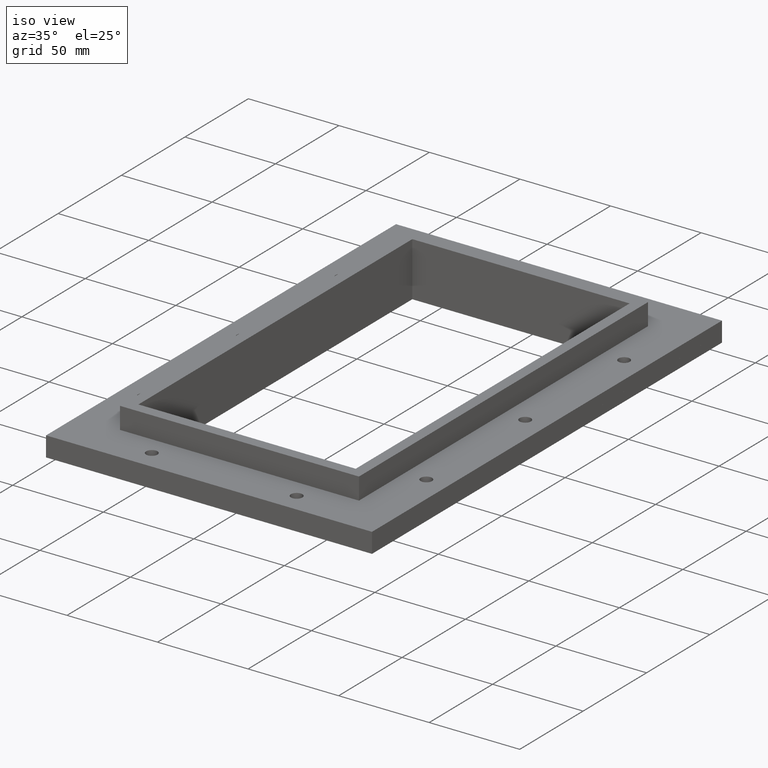
[diagram: clean part render]
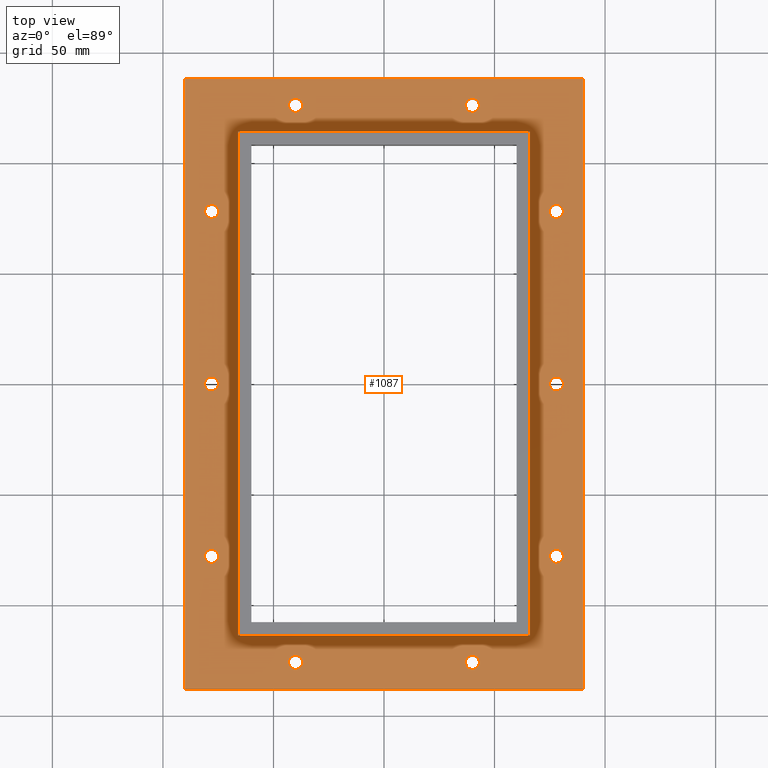
[diagram: tour spotlight — one face highlighted and labeled with its STEP entity id]
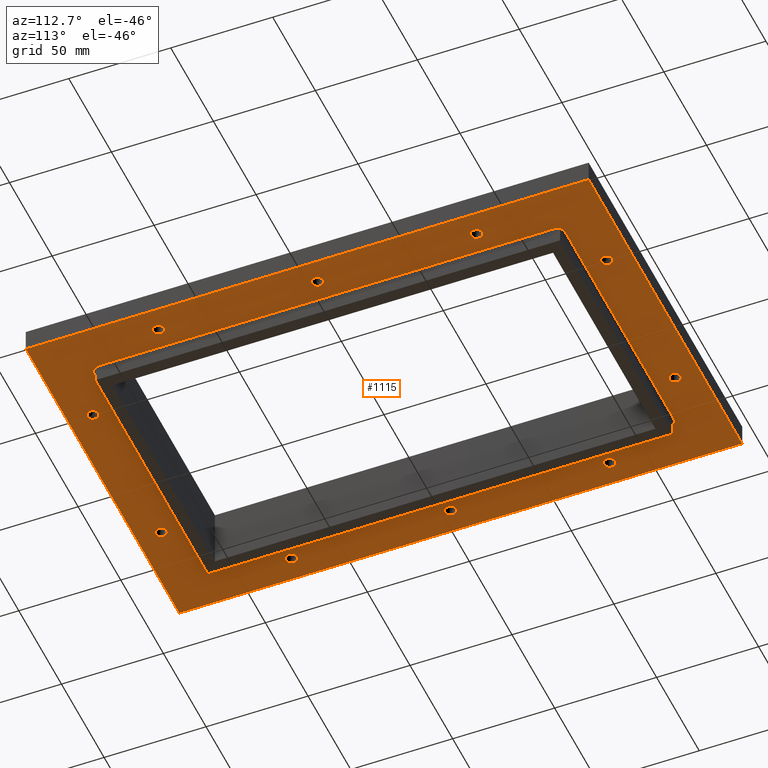
[diagram: tour spotlight — one face highlighted and labeled with its STEP entity id]
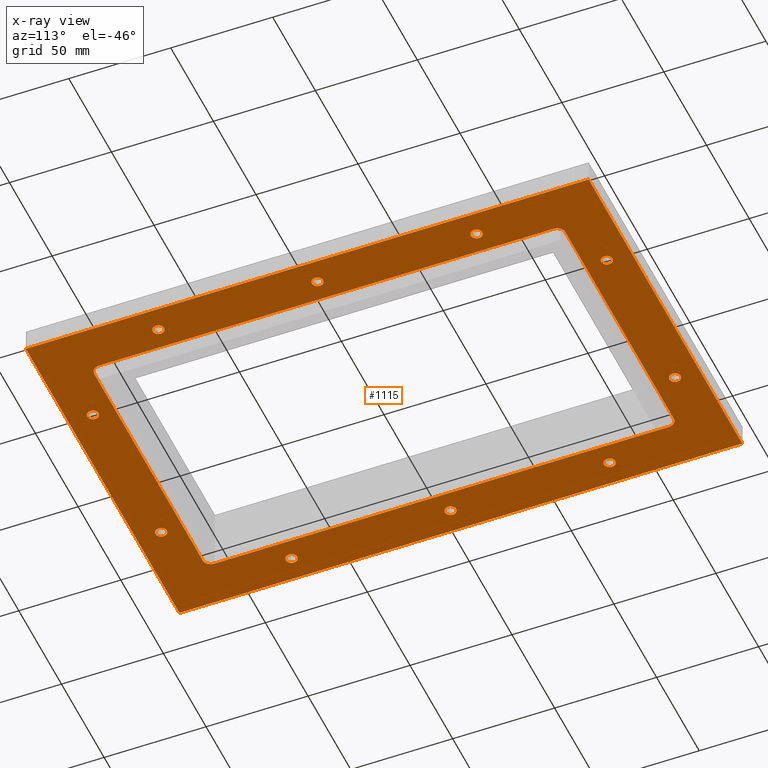
[diagram: x-ray of the same camera — body ghosted, this tour face saturated]
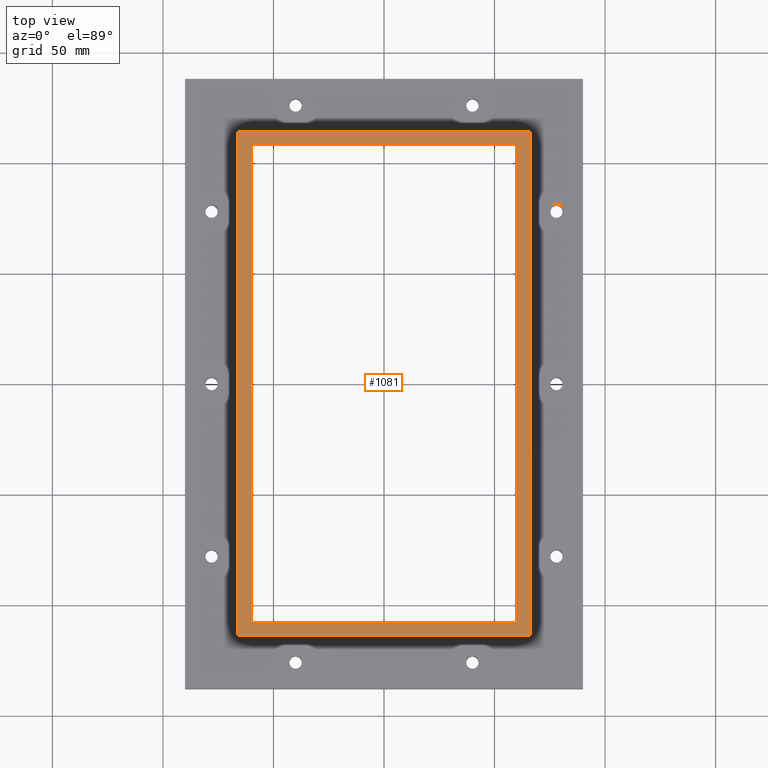
[diagram: tour spotlight — one face highlighted and labeled with its STEP entity id]
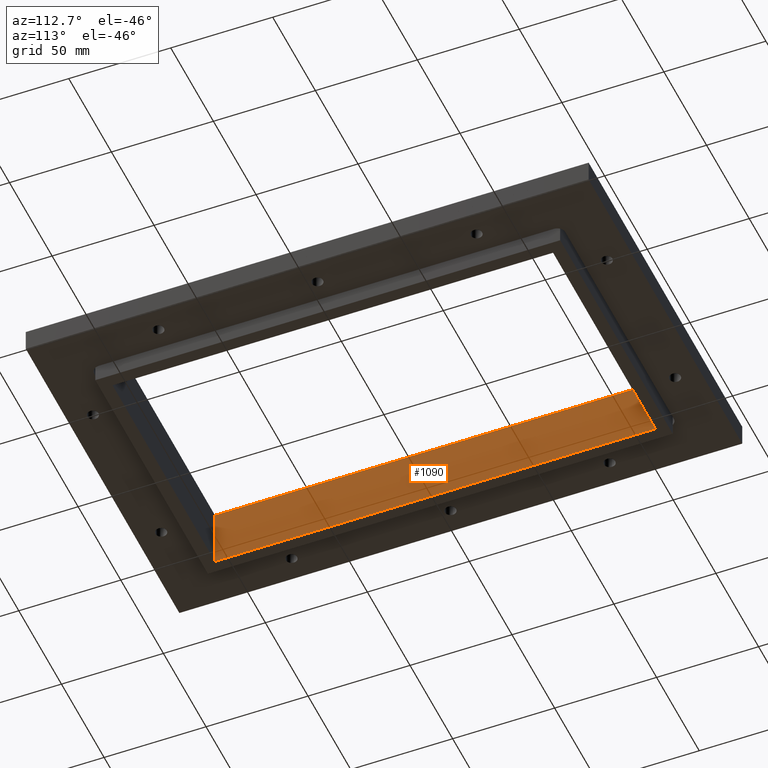
[diagram: tour spotlight — one face highlighted and labeled with its STEP entity id]
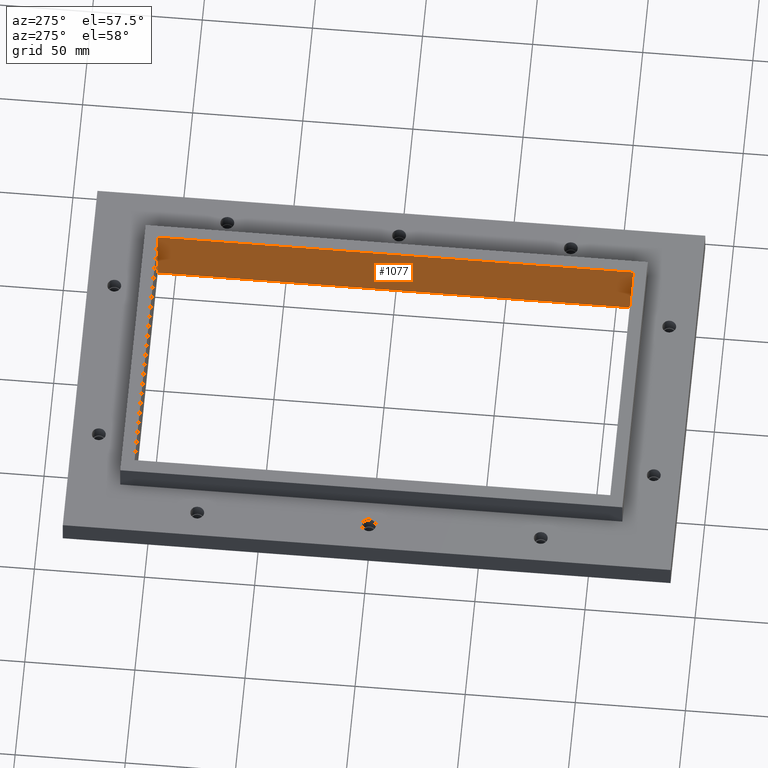
[diagram: tour spotlight — one face highlighted and labeled with its STEP entity id]
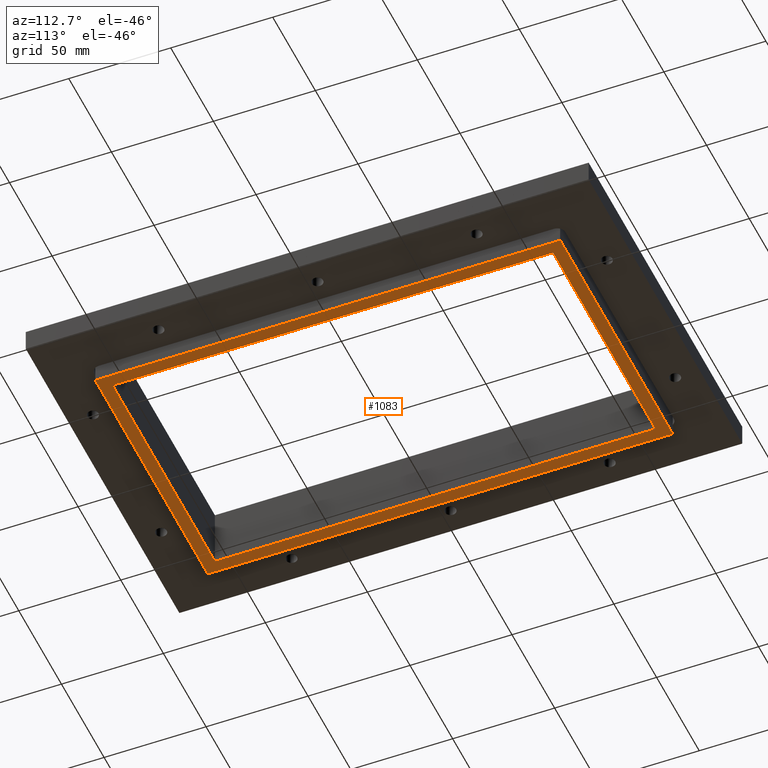
[diagram: tour spotlight — one face highlighted and labeled with its STEP entity id]
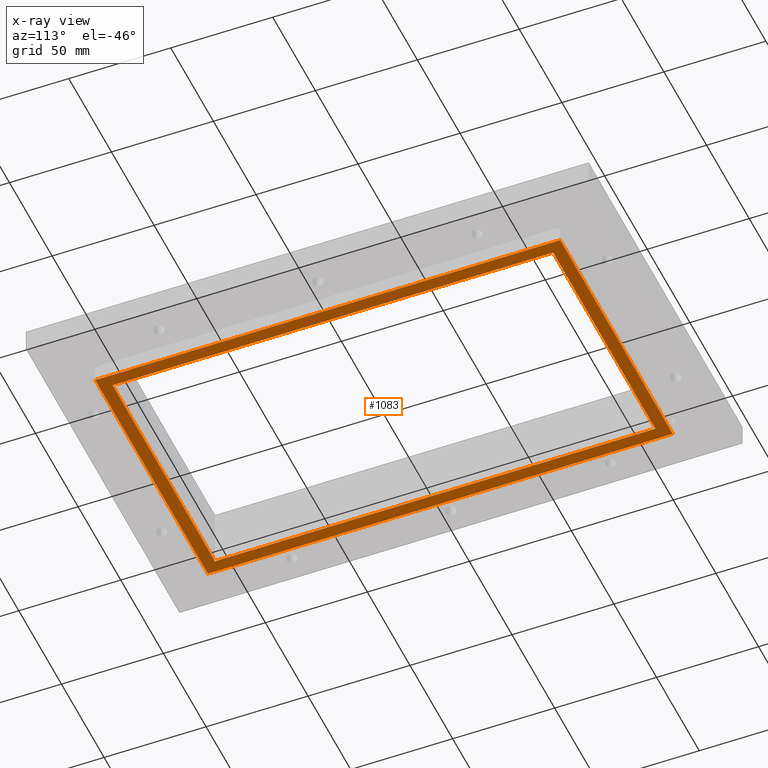
[diagram: x-ray of the same camera — body ghosted, this tour face saturated]
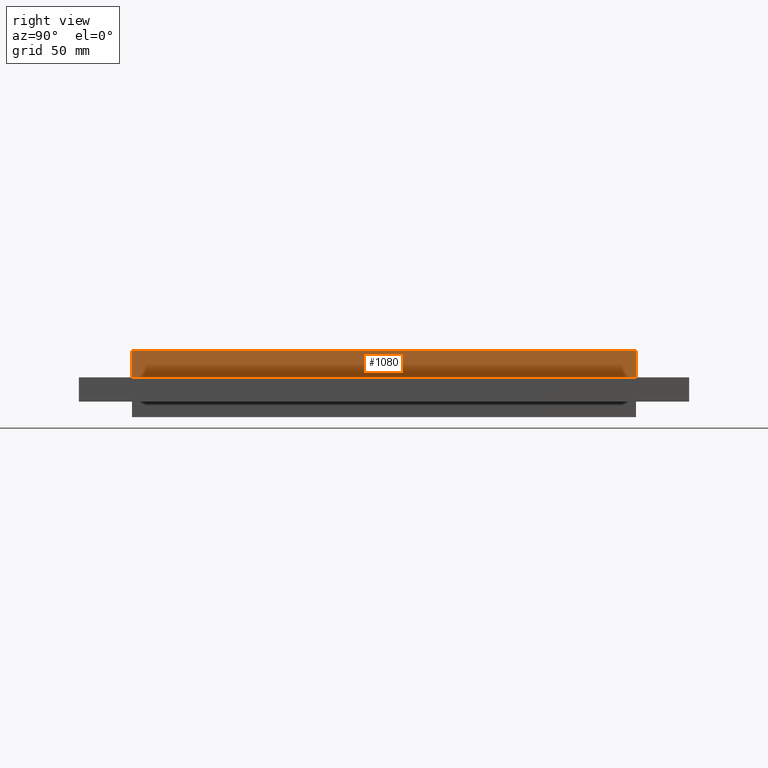
[diagram: tour spotlight — one face highlighted and labeled with its STEP entity id]
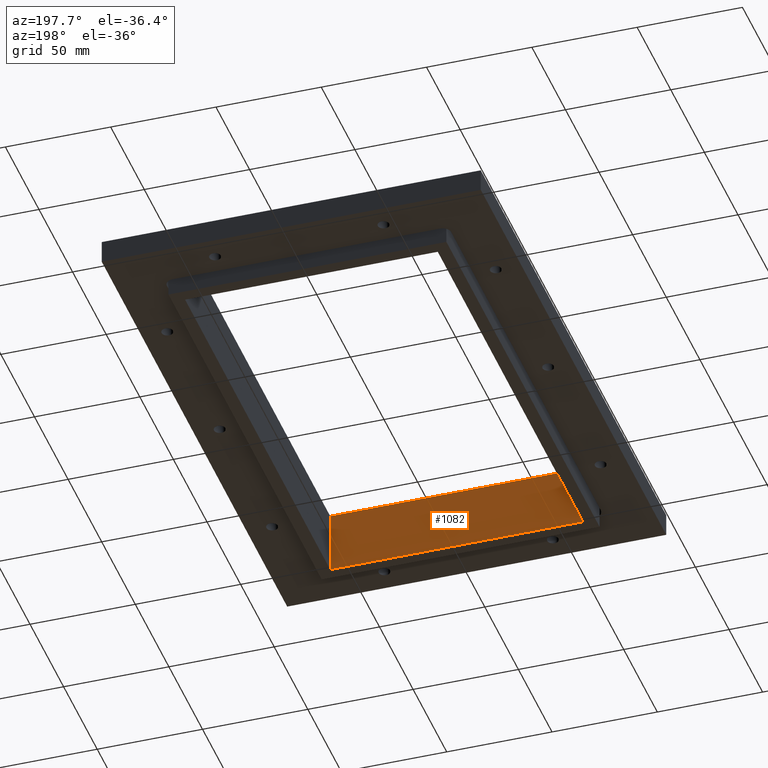
[diagram: tour spotlight — one face highlighted and labeled with its STEP entity id]
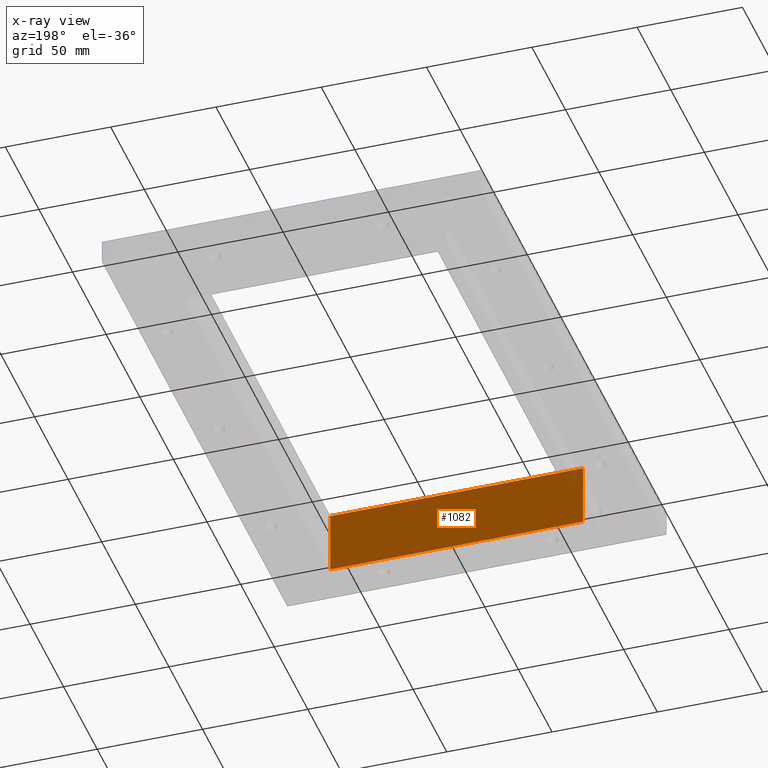
[diagram: x-ray of the same camera — body ghosted, this tour face saturated]
A machine part: a face-by-face anatomy tour. The part has 54 B-rep faces; the first image is the clean iso view, then the 8 largest visible faces are spotlighted one at a time (largest first), each with its STEP entity span.

Face 1 — top view, entity #1087. In plain terms, the highlighted planar face has unit normal (0, 0, 1).
Definition (entity closure, byte-faithful):
#54=FACE_BOUND('',#209,.T.);
#55=FACE_BOUND('',#210,.T.);
#56=FACE_BOUND('',#211,.T.);
#57=FACE_BOUND('',#212,.T.);
#58=FACE_BOUND('',#213,.T.);
#59=FACE_BOUND('',#214,.T.);
#60=FACE_BOUND('',#215,.T.);
#61=FACE_BOUND('',#216,.T.);
#62=FACE_BOUND('',#217,.T.);
#63=FACE_BOUND('',#218,.T.);
#64=FACE_BOUND('',#219,.T.);
#101=PLANE('',#1182);
#141=FACE_OUTER_BOUND('',#208,.T.);
#208=EDGE_LOOP('',(#869,#870,#871,#872));
#209=EDGE_LOOP('',(#873));
#210=EDGE_LOOP('',(#874));
#211=EDGE_LOOP('',(#875));
#212=EDGE_LOOP('',(#876));
#213=EDGE_LOOP('',(#877));
#214=EDGE_LOOP('',(#878));
#215=EDGE_LOOP('',(#879));
#216=EDGE_LOOP('',(#880));
#217=EDGE_LOOP('',(#881));
#218=EDGE_LOOP('',(#882));
#219=EDGE_LOOP('',(#883,#884,#885,#886));
#292=LINE('',#1629,#388);
#294=LINE('',#1635,#390);
#305=LINE('',#1656,#401);
#307=LINE('',#1661,#403);
#324=LINE('',#1691,#420);
#325=LINE('',#1693,#421);
#326=LINE('',#1695,#422);
#327=LINE('',#1696,#423);
#388=VECTOR('',#1329,10.);
#390=VECTOR('',#1333,10.);
#401=VECTOR('',#1350,10.);
#403=VECTOR('',#1354,10.);
#420=VECTOR('',#1383,10.);
#421=VECTOR('',#1386,10.);
#422=VECTOR('',#1387,10.);
#423=VECTOR('',#1388,10.);
#463=CIRCLE('',#1139,3.15);
#465=CIRCLE('',#1142,3.15);
#467=CIRCLE('',#1145,3.15);
#469=CIRCLE('',#1148,3.15);
#471=CIRCLE('',#1151,3.15);
#473=CIRCLE('',#1154,3.15);
#475=CIRCLE('',#1157,3.15);
#477=CIRCLE('',#1160,3.15);
#479=CIRCLE('',#1163,3.15);
#481=CIRCLE('',#1166,3.15);
#511=VERTEX_POINT('',#1544);
#513=VERTEX_POINT('',#1550);
#515=VERTEX_POINT('',#1556);
#517=VERTEX_POINT('',#1562);
#519=VERTEX_POINT('',#1568);
#521=VERTEX_POINT('',#1574);
#523=VERTEX_POINT('',#1580);
#525=VERTEX_POINT('',#1586);
#527=VERTEX_POINT('',#1592);
#529=VERTEX_POINT('',#1598);
#539=VERTEX_POINT('',#1622);
#542=VERTEX_POINT('',#1627);
#544=VERTEX_POINT('',#1632);
#545=VERTEX_POINT('',#1634);
#551=VERTEX_POINT('',#1652);
#554=VERTEX_POINT('',#1659);
#561=VERTEX_POINT('',#1689);
#562=VERTEX_POINT('',#1694);
#607=EDGE_CURVE('',#511,#511,#463,.T.);
#610=EDGE_CURVE('',#513,#513,#465,.T.);
#613=EDGE_CURVE('',#515,#515,#467,.T.);
#616=EDGE_CURVE('',#517,#517,#469,.T.);
#619=EDGE_CURVE('',#519,#519,#471,.T.);
#622=EDGE_CURVE('',#521,#521,#473,.T.);
#625=EDGE_CURVE('',#523,#523,#475,.T.);
#628=EDGE_CURVE('',#525,#525,#477,.T.);
#631=EDGE_CURVE('',#527,#527,#479,.T.);
#634=EDGE_CURVE('',#529,#529,#481,.T.);
#648=EDGE_CURVE('',#539,#542,#292,.T.);
#650=EDGE_CURVE('',#544,#545,#294,.T.);
#661=EDGE_CURVE('',#551,#539,#305,.T.);
#663=EDGE_CURVE('',#554,#544,#307,.T.);
#680=EDGE_CURVE('',#561,#551,#324,.T.);
#681=EDGE_CURVE('',#561,#542,#325,.T.);
#682=EDGE_CURVE('',#545,#562,#326,.T.);
#683=EDGE_CURVE('',#562,#554,#327,.T.);
#869=ORIENTED_EDGE('',*,*,#680,.T.);
#870=ORIENTED_EDGE('',*,*,#661,.T.);
#871=ORIENTED_EDGE('',*,*,#648,.T.);
#872=ORIENTED_EDGE('',*,*,#681,.F.);
#873=ORIENTED_EDGE('',*,*,#607,.T.);
#874=ORIENTED_EDGE('',*,*,#610,.T.);
#875=ORIENTED_EDGE('',*,*,#613,.T.);
#876=ORIENTED_EDGE('',*,*,#616,.T.);
#877=ORIENTED_EDGE('',*,*,#619,.T.);
#878=ORIENTED_EDGE('',*,*,#622,.T.);
#879=ORIENTED_EDGE('',*,*,#625,.T.);
#880=ORIENTED_EDGE('',*,*,#628,.T.);
#881=ORIENTED_EDGE('',*,*,#631,.T.);
#882=ORIENTED_EDGE('',*,*,#634,.T.);
#883=ORIENTED_EDGE('',*,*,#682,.F.);
#884=ORIENTED_EDGE('',*,*,#650,.F.);
#885=ORIENTED_EDGE('',*,*,#663,.F.);
#886=ORIENTED_EDGE('',*,*,#683,.F.);
#1087=ADVANCED_FACE('',(#141,#54,#55,#56,#57,#58,#59,#60,#61,#62,#63,#64),
#101,.T.);
#1139=AXIS2_PLACEMENT_3D('',#1545,#1244,#1245);
#1142=AXIS2_PLACEMENT_3D('',#1551,#1251,#1252);
#1145=AXIS2_PLACEMENT_3D('',#1557,#1258,#1259);
#1148=AXIS2_PLACEMENT_3D('',#1563,#1265,#1266);
#1151=AXIS2_PLACEMENT_3D('',#1569,#1272,#1273);
#1154=AXIS2_PLACEMENT_3D('',#1575,#1279,#1280);
#1157=AXIS2_PLACEMENT_3D('',#1581,#1286,#1287);
#1160=AXIS2_PLACEMENT_3D('',#1587,#1293,#1294);
#1163=AXIS2_PLACEMENT_3D('',#1593,#1300,#1301);
#1166=AXIS2_PLACEMENT_3D('',#1599,#1307,#1308);
#1182=AXIS2_PLACEMENT_3D('',#1692,#1384,#1385);
#1244=DIRECTION('center_axis',(0.,-1.38777878078144E-16,-1.));
#1245=DIRECTION('ref_axis',(-1.,0.,0.));
#1251=DIRECTION('center_axis',(0.,-1.38777878078144E-16,-1.));
#1252=DIRECTION('ref_axis',(-1.,0.,0.));
#1258=DIRECTION('center_axis',(0.,-1.38777878078144E-16,-1.));
#1259=DIRECTION('ref_axis',(-1.,0.,0.));
#1265=DIRECTION('center_axis',(0.,-1.38777878078144E-16,-1.));
#1266=DIRECTION('ref_axis',(1.,0.,0.));
#1272=DIRECTION('center_axis',(0.,-1.38777878078144E-16,-1.));
#1273=DIRECTION('ref_axis',(1.,0.,0.));
#1279=DIRECTION('center_axis',(0.,-1.38777878078144E-16,-1.));
#1280=DIRECTION('ref_axis',(1.,0.,0.));
#1286=DIRECTION('center_axis',(0.,-1.38777878078144E-16,-1.));
#1287=DIRECTION('ref_axis',(1.,0.,0.));
#1293=DIRECTION('center_axis',(0.,-1.38777878078144E-16,-1.));
#1294=DIRECTION('ref_axis',(1.,0.,0.));
#1300=DIRECTION('center_axis',(0.,-1.38777878078144E-16,-1.));
#1301=DIRECTION('ref_axis',(1.,0.,0.));
#1307=DIRECTION('center_axis',(0.,-1.38777878078144E-16,-1.));
#1308=DIRECTION('ref_axis',(1.,0.,0.));
#1329=DIRECTION('',(-1.,-1.54032548624732E-16,0.));
#1333=DIRECTION('',(-1.,-1.54032548624732E-16,0.));
#1350=DIRECTION('',(0.,1.,0.));
#1354=DIRECTION('',(0.,1.,0.));
#1383=DIRECTION('',(1.,0.,0.));
#1384=DIRECTION('center_axis',(0.,1.38777878078144E-16,1.));
#1385=DIRECTION('ref_axis',(-0.707106781186548,-0.707106781186547,9.81307786677358E-17));
#1386=DIRECTION('',(1.64477485129653E-16,1.,0.));
#1387=DIRECTION('',(-1.66191952395288E-16,-1.,0.));
#1388=DIRECTION('',(1.,0.,0.));
#1544=CARTESIAN_POINT('',(81.15,78.,2.99999999999997));
#1545=CARTESIAN_POINT('Origin',(78.,78.,2.99999999999997));
#1550=CARTESIAN_POINT('',(81.15,1.1229705478663E-15,2.99999999999997));
#1551=CARTESIAN_POINT('Origin',(78.,1.50873428959772E-15,2.99999999999997));
#1556=CARTESIAN_POINT('',(81.15,-78.,2.99999999999997));
#1557=CARTESIAN_POINT('Origin',(78.,-78.,2.99999999999997));
#1562=CARTESIAN_POINT('',(-81.15,78.,2.99999999999997));
#1563=CARTESIAN_POINT('Origin',(-78.,78.,2.99999999999997));
#1568=CARTESIAN_POINT('',(-81.15,1.1229705478663E-15,2.99999999999997));
#1569=CARTESIAN_POINT('Origin',(-78.,1.50873428959772E-15,2.99999999999997));
#1574=CARTESIAN_POINT('',(-81.15,-78.,2.99999999999997));
#1575=CARTESIAN_POINT('Origin',(-78.,-78.,2.99999999999997));
#1580=CARTESIAN_POINT('',(36.85,126.,2.99999999999997));
#1581=CARTESIAN_POINT('Origin',(40.,126.,2.99999999999997));
#1586=CARTESIAN_POINT('',(36.85,-126.,2.99999999999997));
#1587=CARTESIAN_POINT('Origin',(40.,-126.,2.99999999999997));
#1592=CARTESIAN_POINT('',(-43.15,126.,2.99999999999997));
#1593=CARTESIAN_POINT('Origin',(-40.,126.,2.99999999999997));
#1598=CARTESIAN_POINT('',(-43.15,-126.,2.99999999999997));
#1599=CARTESIAN_POINT('Origin',(-40.,-126.,2.99999999999997));
#1622=CARTESIAN_POINT('',(90.,138.,3.));
#1627=CARTESIAN_POINT('',(-90.,138.,3.));
#1629=CARTESIAN_POINT('',(90.,138.,3.));
#1632=CARTESIAN_POINT('',(65.9999999999999,114.,3.));
#1634=CARTESIAN_POINT('',(-65.9999999999999,114.,3.));
#1635=CARTESIAN_POINT('',(65.9999999999999,114.,3.));
#1652=CARTESIAN_POINT('',(90.,-138.,3.));
#1656=CARTESIAN_POINT('',(90.,-138.,3.));
#1659=CARTESIAN_POINT('',(65.9999999999999,-114.,3.));
#1661=CARTESIAN_POINT('',(65.9999999999999,-114.,3.));
#1689=CARTESIAN_POINT('',(-90.,-138.,3.));
#1691=CARTESIAN_POINT('',(-90.,-138.,3.));
#1692=CARTESIAN_POINT('Origin',(-66.,-114.,3.));
#1693=CARTESIAN_POINT('',(-90.,108.,3.));
#1694=CARTESIAN_POINT('',(-66.,-114.,3.));
#1695=CARTESIAN_POINT('',(-65.9999999999999,108.,3.));
#1696=CARTESIAN_POINT('',(-66.,-114.,3.));

Face 2 — auxiliary view, entity #1115. An x-ray twin of the same camera follows (body ghosted, this face saturated) — the face is partly hidden behind the body. In plain terms, the highlighted planar face has unit normal (0, -0, -1).
Definition (entity closure, byte-faithful):
#65=FACE_BOUND('',#248,.T.);
#66=FACE_BOUND('',#249,.T.);
#67=FACE_BOUND('',#250,.T.);
#68=FACE_BOUND('',#251,.T.);
#69=FACE_BOUND('',#252,.T.);
#70=FACE_BOUND('',#253,.T.);
#71=FACE_BOUND('',#254,.T.);
#72=FACE_BOUND('',#255,.T.);
#73=FACE_BOUND('',#256,.T.);
#74=FACE_BOUND('',#257,.T.);
#75=FACE_BOUND('',#258,.T.);
#115=PLANE('',#1238);
#169=FACE_OUTER_BOUND('',#247,.T.);
#247=EDGE_LOOP('',(#995,#996,#997,#998));
#248=EDGE_LOOP('',(#999));
#249=EDGE_LOOP('',(#1000));
#250=EDGE_LOOP('',(#1001));
#251=EDGE_LOOP('',(#1002));
#252=EDGE_LOOP('',(#1003));
#253=EDGE_LOOP('',(#1004));
#254=EDGE_LOOP('',(#1005));
#255=EDGE_LOOP('',(#1006));
#256=EDGE_LOOP('',(#1007));
#257=EDGE_LOOP('',(#1008));
#258=EDGE_LOOP('',(#1009,#1010,#1011,#1012,#1013,#1014,#1015,#1016));
#342=LINE('',#1776,#438);
#346=LINE('',#1788,#442);
#350=LINE('',#1800,#446);
#354=LINE('',#1810,#450);
#357=LINE('',#1818,#453);
#360=LINE('',#1824,#456);
#363=LINE('',#1830,#459);
#366=LINE('',#1834,#462);
#438=VECTOR('',#1481,10.);
#442=VECTOR('',#1493,10.);
#446=VECTOR('',#1505,10.);
#450=VECTOR('',#1517,10.);
#453=VECTOR('',#1522,10.);
#456=VECTOR('',#1527,10.);
#459=VECTOR('',#1532,10.);
#462=VECTOR('',#1537,10.);
#484=CIRCLE('',#1190,2.75);
#486=CIRCLE('',#1193,2.75);
#488=CIRCLE('',#1196,2.75);
#490=CIRCLE('',#1199,2.75);
#492=CIRCLE('',#1202,2.75);
#494=CIRCLE('',#1205,2.75);
#496=CIRCLE('',#1208,2.75);
#498=CIRCLE('',#1211,2.75);
#500=CIRCLE('',#1214,2.75);
#502=CIRCLE('',#1217,2.75);
#504=CIRCLE('',#1220,3.99999999999997);
#506=CIRCLE('',#1224,3.99999999999995);
#508=CIRCLE('',#1228,4.00000000000002);
#510=CIRCLE('',#1232,4.);
#564=VERTEX_POINT('',#1706);
#566=VERTEX_POINT('',#1712);
#568=VERTEX_POINT('',#1718);
#570=VERTEX_POINT('',#1724);
#572=VERTEX_POINT('',#1730);
#574=VERTEX_POINT('',#1736);
#576=VERTEX_POINT('',#1742);
#578=VERTEX_POINT('',#1748);
#580=VERTEX_POINT('',#1754);
#582=VERTEX_POINT('',#1760);
#585=VERTEX_POINT('',#1767);
#586=VERTEX_POINT('',#1769);
#588=VERTEX_POINT('',#1775);
#590=VERTEX_POINT('',#1781);
#592=VERTEX_POINT('',#1787);
#594=VERTEX_POINT('',#1793);
#596=VERTEX_POINT('',#1799);
#598=VERTEX_POINT('',#1805);
#601=VERTEX_POINT('',#1815);
#602=VERTEX_POINT('',#1817);
#604=VERTEX_POINT('',#1823);
#606=VERTEX_POINT('',#1829);
#687=EDGE_CURVE('',#564,#564,#484,.T.);
#690=EDGE_CURVE('',#566,#566,#486,.T.);
#693=EDGE_CURVE('',#568,#568,#488,.T.);
#696=EDGE_CURVE('',#570,#570,#490,.T.);
#699=EDGE_CURVE('',#572,#572,#492,.T.);
#702=EDGE_CURVE('',#574,#574,#494,.T.);
#705=EDGE_CURVE('',#576,#576,#496,.T.);
#708=EDGE_CURVE('',#578,#578,#498,.T.);
#711=EDGE_CURVE('',#580,#580,#500,.T.);
#714=EDGE_CURVE('',#582,#582,#502,.T.);
#717=EDGE_CURVE('',#586,#585,#504,.T.);
#720=EDGE_CURVE('',#588,#586,#342,.T.);
#723=EDGE_CURVE('',#590,#588,#506,.T.);
#726=EDGE_CURVE('',#592,#590,#346,.T.);
#729=EDGE_CURVE('',#594,#592,#508,.T.);
#732=EDGE_CURVE('',#596,#594,#350,.T.);
#735=EDGE_CURVE('',#598,#596,#510,.T.);
#738=EDGE_CURVE('',#585,#598,#354,.T.);
#741=EDGE_CURVE('',#602,#601,#357,.T.);
#744=EDGE_CURVE('',#604,#602,#360,.T.);
#747=EDGE_CURVE('',#606,#604,#363,.T.);
#750=EDGE_CURVE('',#601,#606,#366,.T.);
#995=ORIENTED_EDGE('',*,*,#750,.T.);
#996=ORIENTED_EDGE('',*,*,#747,.T.);
#997=ORIENTED_EDGE('',*,*,#744,.T.);
#998=ORIENTED_EDGE('',*,*,#741,.T.);
#999=ORIENTED_EDGE('',*,*,#687,.T.);
#1000=ORIENTED_EDGE('',*,*,#690,.T.);
#1001=ORIENTED_EDGE('',*,*,#693,.T.);
#1002=ORIENTED_EDGE('',*,*,#696,.T.);
#1003=ORIENTED_EDGE('',*,*,#699,.T.);
#1004=ORIENTED_EDGE('',*,*,#702,.T.);
#1005=ORIENTED_EDGE('',*,*,#705,.T.);
#1006=ORIENTED_EDGE('',*,*,#708,.T.);
#1007=ORIENTED_EDGE('',*,*,#711,.T.);
#1008=ORIENTED_EDGE('',*,*,#714,.T.);
#1009=ORIENTED_EDGE('',*,*,#738,.T.);
#1010=ORIENTED_EDGE('',*,*,#735,.T.);
#1011=ORIENTED_EDGE('',*,*,#732,.T.);
#1012=ORIENTED_EDGE('',*,*,#729,.T.);
#1013=ORIENTED_EDGE('',*,*,#726,.T.);
#1014=ORIENTED_EDGE('',*,*,#723,.T.);
#1015=ORIENTED_EDGE('',*,*,#720,.T.);
#1016=ORIENTED_EDGE('',*,*,#717,.T.);
#1115=ADVANCED_FACE('',(#169,#65,#66,#67,#68,#69,#70,#71,#72,#73,#74,#75),
#115,.T.);
#1190=AXIS2_PLACEMENT_3D('',#1708,#1405,#1406);
#1193=AXIS2_PLACEMENT_3D('',#1714,#1412,#1413);
#1196=AXIS2_PLACEMENT_3D('',#1720,#1419,#1420);
#1199=AXIS2_PLACEMENT_3D('',#1726,#1426,#1427);
#1202=AXIS2_PLACEMENT_3D('',#1732,#1433,#1434);
#1205=AXIS2_PLACEMENT_3D('',#1738,#1440,#1441);
#1208=AXIS2_PLACEMENT_3D('',#1744,#1447,#1448);
#1211=AXIS2_PLACEMENT_3D('',#1750,#1454,#1455);
#1214=AXIS2_PLACEMENT_3D('',#1756,#1461,#1462);
#1217=AXIS2_PLACEMENT_3D('',#1762,#1468,#1469);
#1220=AXIS2_PLACEMENT_3D('',#1770,#1475,#1476);
#1224=AXIS2_PLACEMENT_3D('',#1782,#1487,#1488);
#1228=AXIS2_PLACEMENT_3D('',#1794,#1499,#1500);
#1232=AXIS2_PLACEMENT_3D('',#1806,#1511,#1512);
#1238=AXIS2_PLACEMENT_3D('',#1835,#1538,#1539);
#1405=DIRECTION('center_axis',(0.,1.38777878078145E-16,1.));
#1406=DIRECTION('ref_axis',(-1.,1.97372982155583E-16,-2.73910036535074E-32));
#1412=DIRECTION('center_axis',(0.,1.38777878078145E-16,1.));
#1413=DIRECTION('ref_axis',(-1.,1.97372982155583E-16,-2.73910036535074E-32));
#1419=DIRECTION('center_axis',(0.,1.38777878078145E-16,1.));
#1420=DIRECTION('ref_axis',(-1.,1.97372982155583E-16,-2.73910036535074E-32));
#1426=DIRECTION('center_axis',(0.,1.38777878078145E-16,1.));
#1427=DIRECTION('ref_axis',(1.,1.97372982155583E-16,-2.73910036535074E-32));
#1433=DIRECTION('center_axis',(0.,1.38777878078145E-16,1.));
#1434=DIRECTION('ref_axis',(1.,1.97372982155583E-16,-2.73910036535074E-32));
#1440=DIRECTION('center_axis',(0.,1.38777878078145E-16,1.));
#1441=DIRECTION('ref_axis',(1.,1.97372982155583E-16,-2.73910036535074E-32));
#1447=DIRECTION('center_axis',(0.,1.38777878078145E-16,1.));
#1448=DIRECTION('ref_axis',(1.,1.97372982155583E-16,-2.73910036535074E-32));
#1454=DIRECTION('center_axis',(0.,1.38777878078145E-16,1.));
#1455=DIRECTION('ref_axis',(1.,1.97372982155583E-16,-2.73910036535074E-32));
#1461=DIRECTION('center_axis',(0.,1.38777878078145E-16,1.));
#1462=DIRECTION('ref_axis',(1.,1.97372982155583E-16,-2.73910036535074E-32));
#1468=DIRECTION('center_axis',(0.,1.38777878078145E-16,1.));
#1469=DIRECTION('ref_axis',(1.,1.97372982155583E-16,-2.73910036535074E-32));
#1475=DIRECTION('center_axis',(0.,1.38777878078145E-16,1.));
#1476=DIRECTION('ref_axis',(-1.,-1.97372982155583E-16,2.73910036535074E-32));
#1481=DIRECTION('',(1.,1.97372982155584E-16,-2.73910036535074E-32));
#1487=DIRECTION('center_axis',(0.,1.38777878078145E-16,1.));
#1488=DIRECTION('ref_axis',(-1.97372982155584E-16,1.,-1.38777878078145E-16));
#1493=DIRECTION('',(2.58709070332184E-15,-1.,1.38777878078145E-16));
#1499=DIRECTION('center_axis',(0.,1.38777878078145E-16,1.));
#1500=DIRECTION('ref_axis',(1.,5.74848810528136E-15,-7.97762981408401E-31));
#1505=DIRECTION('',(-1.,-1.97372982155584E-16,2.73910036535074E-32));
#1511=DIRECTION('center_axis',(0.,1.38777878078145E-16,1.));
#1512=DIRECTION('ref_axis',(1.30759600678074E-15,-1.,1.38777878078145E-16));
#1517=DIRECTION('',(1.80998990362407E-16,1.,-1.38777878078145E-16));
#1522=DIRECTION('',(1.88791548148819E-16,1.,-1.38777878078145E-16));
#1527=DIRECTION('',(-1.,-4.38256058456118E-32,4.86561966779451E-48));
#1532=DIRECTION('',(-6.00700380473514E-17,-1.,1.38777878078145E-16));
#1537=DIRECTION('',(1.,1.97372982155584E-16,-2.73910036535074E-32));
#1538=DIRECTION('center_axis',(0.,-1.38777878078145E-16,-1.));
#1539=DIRECTION('ref_axis',(-1.,0.,0.));
#1706=CARTESIAN_POINT('',(80.75,78.,-8.00000000000004));
#1708=CARTESIAN_POINT('Origin',(78.,78.,-8.00000000000004));
#1712=CARTESIAN_POINT('',(80.75,-3.5527136788005E-14,-8.00000000000004));
#1714=CARTESIAN_POINT('Origin',(78.,-3.48961611960891E-14,-8.00000000000004));
#1718=CARTESIAN_POINT('',(80.75,-78.,-8.00000000000004));
#1720=CARTESIAN_POINT('Origin',(78.,-78.,-8.00000000000004));
#1724=CARTESIAN_POINT('',(-80.75,78.,-8.00000000000004));
#1726=CARTESIAN_POINT('Origin',(-78.,78.,-8.00000000000004));
#1730=CARTESIAN_POINT('',(-80.75,-3.5527136788005E-14,-8.00000000000004));
#1732=CARTESIAN_POINT('Origin',(-78.,-3.48961611960891E-14,-8.00000000000004));
#1736=CARTESIAN_POINT('',(37.25,-126.,-8.00000000000004));
#1738=CARTESIAN_POINT('Origin',(40.,-126.,-8.00000000000004));
#1742=CARTESIAN_POINT('',(37.25,126.,-8.00000000000004));
#1744=CARTESIAN_POINT('Origin',(40.,126.,-8.00000000000004));
#1748=CARTESIAN_POINT('',(-80.75,-78.,-8.00000000000004));
#1750=CARTESIAN_POINT('Origin',(-78.,-78.,-8.00000000000004));
#1754=CARTESIAN_POINT('',(-42.75,-126.,-8.00000000000004));
#1756=CARTESIAN_POINT('Origin',(-40.,-126.,-8.00000000000004));
#1760=CARTESIAN_POINT('',(-42.75,126.,-8.00000000000004));
#1762=CARTESIAN_POINT('Origin',(-40.,126.,-8.00000000000004));
#1767=CARTESIAN_POINT('',(67.4999999999999,-111.5,-8.));
#1769=CARTESIAN_POINT('',(63.4999999999999,-115.5,-8.));
#1770=CARTESIAN_POINT('Origin',(63.4999999999999,-111.5,-8.));
#1775=CARTESIAN_POINT('',(-63.4999999999995,-115.5,-8.));
#1776=CARTESIAN_POINT('',(-63.4999999999995,-115.5,-8.));
#1781=CARTESIAN_POINT('',(-67.4999999999995,-111.5,-8.));
#1782=CARTESIAN_POINT('Origin',(-63.4999999999995,-111.5,-8.));
#1787=CARTESIAN_POINT('',(-67.5000000000001,111.5,-8.00000000000003));
#1788=CARTESIAN_POINT('',(-67.5000000000001,111.5,-8.00000000000003));
#1793=CARTESIAN_POINT('',(-63.5,115.5,-8.00000000000003));
#1794=CARTESIAN_POINT('Origin',(-63.5,111.5,-8.00000000000003));
#1799=CARTESIAN_POINT('',(63.5,115.5,-8.00000000000003));
#1800=CARTESIAN_POINT('',(63.5,115.5,-8.00000000000003));
#1805=CARTESIAN_POINT('',(67.5,111.5,-8.00000000000003));
#1806=CARTESIAN_POINT('Origin',(63.5,111.5,-8.00000000000003));
#1810=CARTESIAN_POINT('',(67.4999999999999,-111.5,-8.));
#1815=CARTESIAN_POINT('',(-89.9999999999999,138.,-8.00000000000003));
#1817=CARTESIAN_POINT('',(-90.,-138.,-8.));
#1818=CARTESIAN_POINT('',(-90.,-138.,-8.));
#1823=CARTESIAN_POINT('',(89.9999999999999,-138.,-8.));
#1824=CARTESIAN_POINT('',(89.9999999999999,-138.,-8.));
#1829=CARTESIAN_POINT('',(89.9999999999999,138.,-8.00000000000003));
#1830=CARTESIAN_POINT('',(89.9999999999999,138.,-8.00000000000003));
#1834=CARTESIAN_POINT('',(-89.9999999999999,138.,-8.00000000000003));
#1835=CARTESIAN_POINT('Origin',(-1.77635683940025E-14,1.77635683940025E-14,
-8.00000000000001));

Face 3 — top view, entity #1081. In plain terms, the highlighted planar face has unit normal (0, -0, 1).
Definition (entity closure, byte-faithful):
#41=FACE_BOUND('',#190,.T.);
#95=PLANE('',#1176);
#135=FACE_OUTER_BOUND('',#189,.T.);
#189=EDGE_LOOP('',(#823,#824,#825,#826));
#190=EDGE_LOOP('',(#827,#828,#829,#830));
#282=LINE('',#1608,#378);
#296=LINE('',#1638,#392);
#298=LINE('',#1643,#394);
#308=LINE('',#1662,#404);
#309=LINE('',#1665,#405);
#310=LINE('',#1666,#406);
#311=LINE('',#1668,#407);
#312=LINE('',#1669,#408);
#378=VECTOR('',#1315,10.);
#392=VECTOR('',#1335,10.);
#394=VECTOR('',#1339,10.);
#404=VECTOR('',#1355,10.);
#405=VECTOR('',#1358,10.);
#406=VECTOR('',#1359,10.);
#407=VECTOR('',#1360,10.);
#408=VECTOR('',#1361,10.);
#532=VERTEX_POINT('',#1605);
#533=VERTEX_POINT('',#1607);
#543=VERTEX_POINT('',#1631);
#546=VERTEX_POINT('',#1636);
#548=VERTEX_POINT('',#1641);
#553=VERTEX_POINT('',#1658);
#555=VERTEX_POINT('',#1664);
#556=VERTEX_POINT('',#1667);
#638=EDGE_CURVE('',#532,#533,#282,.T.);
#652=EDGE_CURVE('',#543,#546,#296,.T.);
#654=EDGE_CURVE('',#548,#532,#298,.T.);
#664=EDGE_CURVE('',#553,#543,#308,.T.);
#665=EDGE_CURVE('',#555,#553,#309,.T.);
#666=EDGE_CURVE('',#555,#546,#310,.T.);
#667=EDGE_CURVE('',#556,#533,#311,.T.);
#668=EDGE_CURVE('',#556,#548,#312,.T.);
#823=ORIENTED_EDGE('',*,*,#665,.T.);
#824=ORIENTED_EDGE('',*,*,#664,.T.);
#825=ORIENTED_EDGE('',*,*,#652,.T.);
#826=ORIENTED_EDGE('',*,*,#666,.F.);
#827=ORIENTED_EDGE('',*,*,#667,.T.);
#828=ORIENTED_EDGE('',*,*,#638,.F.);
#829=ORIENTED_EDGE('',*,*,#654,.F.);
#830=ORIENTED_EDGE('',*,*,#668,.F.);
#1081=ADVANCED_FACE('',(#135,#41),#95,.T.);
#1176=AXIS2_PLACEMENT_3D('',#1663,#1356,#1357);
#1315=DIRECTION('',(-1.,-1.54032548624732E-16,0.));
#1335=DIRECTION('',(-1.,-1.54032548624732E-16,0.));
#1339=DIRECTION('',(0.,1.,0.));
#1355=DIRECTION('',(0.,1.,0.));
#1356=DIRECTION('center_axis',(0.,-3.70074341541718E-16,1.));
#1357=DIRECTION('ref_axis',(-0.707106781186548,-0.707106781186547,-2.61682076447296E-16));
#1358=DIRECTION('',(1.,0.,0.));
#1359=DIRECTION('',(1.64477485129653E-16,1.,0.));
#1360=DIRECTION('',(1.64477485129653E-16,1.,0.));
#1361=DIRECTION('',(1.,0.,0.));
#1605=CARTESIAN_POINT('',(60.,108.,15.));
#1607=CARTESIAN_POINT('',(-59.9999999999999,108.,15.));
#1608=CARTESIAN_POINT('',(60.,108.,15.));
#1631=CARTESIAN_POINT('',(65.9999999999999,114.,15.));
#1636=CARTESIAN_POINT('',(-65.9999999999999,114.,15.));
#1638=CARTESIAN_POINT('',(65.9999999999999,114.,15.));
#1641=CARTESIAN_POINT('',(60.,-108.,15.));
#1643=CARTESIAN_POINT('',(60.,-108.,15.));
#1658=CARTESIAN_POINT('',(65.9999999999999,-114.,15.));
#1662=CARTESIAN_POINT('',(65.9999999999999,-114.,15.));
#1663=CARTESIAN_POINT('Origin',(-60.,-108.,15.));
#1664=CARTESIAN_POINT('',(-66.,-114.,15.));
#1665=CARTESIAN_POINT('',(-66.,-114.,15.));
#1666=CARTESIAN_POINT('',(-65.9999999999999,108.,15.));
#1667=CARTESIAN_POINT('',(-60.,-108.,15.));
#1668=CARTESIAN_POINT('',(-59.9999999999999,108.,15.));
#1669=CARTESIAN_POINT('',(-60.,-108.,15.));

Face 4 — auxiliary view, entity #1090. In plain terms, the highlighted planar face has unit normal (1, -0, 0).
Definition (entity closure, byte-faithful):
#104=PLANE('',#1185);
#144=FACE_OUTER_BOUND('',#222,.T.);
#222=EDGE_LOOP('',(#895,#896,#897,#898));
#283=LINE('',#1610,#379);
#311=LINE('',#1668,#407);
#313=LINE('',#1672,#409);
#317=LINE('',#1678,#413);
#379=VECTOR('',#1316,10.);
#407=VECTOR('',#1360,10.);
#409=VECTOR('',#1364,10.);
#413=VECTOR('',#1370,10.);
#533=VERTEX_POINT('',#1607);
#534=VERTEX_POINT('',#1609);
#556=VERTEX_POINT('',#1667);
#557=VERTEX_POINT('',#1671);
#639=EDGE_CURVE('',#534,#533,#283,.T.);
#667=EDGE_CURVE('',#556,#533,#311,.T.);
#669=EDGE_CURVE('',#557,#556,#313,.T.);
#673=EDGE_CURVE('',#557,#534,#317,.T.);
#895=ORIENTED_EDGE('',*,*,#639,.T.);
#896=ORIENTED_EDGE('',*,*,#667,.F.);
#897=ORIENTED_EDGE('',*,*,#669,.F.);
#898=ORIENTED_EDGE('',*,*,#673,.T.);
#1090=ADVANCED_FACE('',(#144),#104,.T.);
#1185=AXIS2_PLACEMENT_3D('',#1700,#1394,#1395);
#1316=DIRECTION('',(0.,0.,1.));
#1360=DIRECTION('',(1.64477485129653E-16,1.,0.));
#1364=DIRECTION('',(0.,0.,1.));
#1370=DIRECTION('',(1.64477485129653E-16,1.,0.));
#1394=DIRECTION('center_axis',(1.,-1.64477485129653E-16,0.));
#1395=DIRECTION('ref_axis',(0.,0.,1.));
#1607=CARTESIAN_POINT('',(-59.9999999999999,108.,15.));
#1609=CARTESIAN_POINT('',(-59.9999999999999,108.,-15.));
#1610=CARTESIAN_POINT('',(-59.9999999999999,108.,-7.5));
#1667=CARTESIAN_POINT('',(-60.,-108.,15.));
#1668=CARTESIAN_POINT('',(-59.9999999999999,108.,15.));
#1671=CARTESIAN_POINT('',(-60.,-108.,-15.));
#1672=CARTESIAN_POINT('',(-60.,-108.,-7.5));
#1678=CARTESIAN_POINT('',(-59.9999999999999,108.,-15.));
#1700=CARTESIAN_POINT('Origin',(-59.9999999999999,108.,-15.));

Face 5 — auxiliary view, entity #1077. In plain terms, the highlighted planar face has unit normal (-1, 0, 0).
Definition (entity closure, byte-faithful):
#91=PLANE('',#1172);
#131=FACE_OUTER_BOUND('',#185,.T.);
#185=EDGE_LOOP('',(#807,#808,#809,#810));
#281=LINE('',#1606,#377);
#297=LINE('',#1642,#393);
#298=LINE('',#1643,#394);
#299=LINE('',#1644,#395);
#377=VECTOR('',#1314,10.);
#393=VECTOR('',#1338,10.);
#394=VECTOR('',#1339,10.);
#395=VECTOR('',#1340,10.);
#531=VERTEX_POINT('',#1604);
#532=VERTEX_POINT('',#1605);
#547=VERTEX_POINT('',#1640);
#548=VERTEX_POINT('',#1641);
#637=EDGE_CURVE('',#531,#532,#281,.T.);
#653=EDGE_CURVE('',#547,#548,#297,.T.);
#654=EDGE_CURVE('',#548,#532,#298,.T.);
#655=EDGE_CURVE('',#547,#531,#299,.T.);
#807=ORIENTED_EDGE('',*,*,#653,.T.);
#808=ORIENTED_EDGE('',*,*,#654,.T.);
#809=ORIENTED_EDGE('',*,*,#637,.F.);
#810=ORIENTED_EDGE('',*,*,#655,.F.);
#1077=ADVANCED_FACE('',(#131),#91,.T.);
#1172=AXIS2_PLACEMENT_3D('',#1639,#1336,#1337);
#1314=DIRECTION('',(0.,0.,1.));
#1336=DIRECTION('center_axis',(-1.,0.,0.));
#1337=DIRECTION('ref_axis',(0.,0.,1.));
#1338=DIRECTION('',(0.,0.,1.));
#1339=DIRECTION('',(0.,1.,0.));
#1340=DIRECTION('',(0.,1.,0.));
#1604=CARTESIAN_POINT('',(60.,108.,-15.));
#1605=CARTESIAN_POINT('',(60.,108.,15.));
#1606=CARTESIAN_POINT('',(59.9999999999999,108.,-7.5));
#1639=CARTESIAN_POINT('Origin',(59.9999999999999,-108.,-15.));
#1640=CARTESIAN_POINT('',(60.,-108.,-15.));
#1641=CARTESIAN_POINT('',(60.,-108.,15.));
#1642=CARTESIAN_POINT('',(59.9999999999999,-108.,-7.5));
#1643=CARTESIAN_POINT('',(60.,-108.,15.));
#1644=CARTESIAN_POINT('',(60.,-108.,-15.));

Face 6 — auxiliary view, entity #1083. An x-ray twin of the same camera follows (body ghosted, this face saturated) — the face is partly hidden behind the body. In plain terms, the highlighted planar face has unit normal (0, -0, -1).
Definition (entity closure, byte-faithful):
#42=FACE_BOUND('',#193,.T.);
#97=PLANE('',#1178);
#137=FACE_OUTER_BOUND('',#192,.T.);
#192=EDGE_LOOP('',(#835,#836,#837,#838));
#193=EDGE_LOOP('',(#839,#840,#841,#842));
#284=LINE('',#1611,#380);
#286=LINE('',#1617,#382);
#299=LINE('',#1644,#395);
#301=LINE('',#1649,#397);
#314=LINE('',#1673,#410);
#315=LINE('',#1676,#411);
#316=LINE('',#1677,#412);
#317=LINE('',#1678,#413);
#380=VECTOR('',#1317,10.);
#382=VECTOR('',#1321,10.);
#395=VECTOR('',#1340,10.);
#397=VECTOR('',#1344,10.);
#410=VECTOR('',#1365,10.);
#411=VECTOR('',#1368,10.);
#412=VECTOR('',#1369,10.);
#413=VECTOR('',#1370,10.);
#531=VERTEX_POINT('',#1604);
#534=VERTEX_POINT('',#1609);
#536=VERTEX_POINT('',#1614);
#537=VERTEX_POINT('',#1616);
#547=VERTEX_POINT('',#1640);
#550=VERTEX_POINT('',#1647);
#557=VERTEX_POINT('',#1671);
#558=VERTEX_POINT('',#1675);
#640=EDGE_CURVE('',#531,#534,#284,.T.);
#642=EDGE_CURVE('',#536,#537,#286,.T.);
#655=EDGE_CURVE('',#547,#531,#299,.T.);
#657=EDGE_CURVE('',#550,#536,#301,.T.);
#670=EDGE_CURVE('',#557,#547,#314,.T.);
#671=EDGE_CURVE('',#558,#537,#315,.T.);
#672=EDGE_CURVE('',#558,#550,#316,.T.);
#673=EDGE_CURVE('',#557,#534,#317,.T.);
#835=ORIENTED_EDGE('',*,*,#671,.T.);
#836=ORIENTED_EDGE('',*,*,#642,.F.);
#837=ORIENTED_EDGE('',*,*,#657,.F.);
#838=ORIENTED_EDGE('',*,*,#672,.F.);
#839=ORIENTED_EDGE('',*,*,#670,.T.);
#840=ORIENTED_EDGE('',*,*,#655,.T.);
#841=ORIENTED_EDGE('',*,*,#640,.T.);
#842=ORIENTED_EDGE('',*,*,#673,.F.);
#1083=ADVANCED_FACE('',(#137,#42),#97,.T.);
#1178=AXIS2_PLACEMENT_3D('',#1674,#1366,#1367);
#1317=DIRECTION('',(-1.,-1.54032548624732E-16,0.));
#1321=DIRECTION('',(-1.,-1.54032548624732E-16,0.));
#1340=DIRECTION('',(0.,1.,0.));
#1344=DIRECTION('',(0.,1.,0.));
#1365=DIRECTION('',(1.,0.,0.));
#1366=DIRECTION('center_axis',(0.,-3.70074341541718E-16,-1.));
#1367=DIRECTION('ref_axis',(0.707106781186548,0.707106781186547,-2.61682076447296E-16));
#1368=DIRECTION('',(1.64477485129653E-16,1.,0.));
#1369=DIRECTION('',(1.,0.,0.));
#1370=DIRECTION('',(1.64477485129653E-16,1.,0.));
#1604=CARTESIAN_POINT('',(60.,108.,-15.));
#1609=CARTESIAN_POINT('',(-59.9999999999999,108.,-15.));
#1611=CARTESIAN_POINT('',(60.,108.,-15.));
#1614=CARTESIAN_POINT('',(65.9999999999999,114.,-15.));
#1616=CARTESIAN_POINT('',(-65.9999999999999,114.,-15.));
#1617=CARTESIAN_POINT('',(65.9999999999999,114.,-15.));
#1640=CARTESIAN_POINT('',(60.,-108.,-15.));
#1644=CARTESIAN_POINT('',(60.,-108.,-15.));
#1647=CARTESIAN_POINT('',(65.9999999999999,-114.,-15.));
#1649=CARTESIAN_POINT('',(65.9999999999999,-114.,-15.));
#1671=CARTESIAN_POINT('',(-60.,-108.,-15.));
#1673=CARTESIAN_POINT('',(-60.,-108.,-15.));
#1674=CARTESIAN_POINT('Origin',(-66.,-114.,-15.));
#1675=CARTESIAN_POINT('',(-66.,-114.,-15.));
#1676=CARTESIAN_POINT('',(-65.9999999999999,108.,-15.));
#1677=CARTESIAN_POINT('',(-66.,-114.,-15.));
#1678=CARTESIAN_POINT('',(-59.9999999999999,108.,-15.));

Face 7 — right view, entity #1080. In plain terms, the highlighted planar face has unit normal (1, 0, 0).
Definition (entity closure, byte-faithful):
#94=PLANE('',#1175);
#134=FACE_OUTER_BOUND('',#188,.T.);
#188=EDGE_LOOP('',(#819,#820,#821,#822));
#293=LINE('',#1633,#389);
#306=LINE('',#1660,#402);
#307=LINE('',#1661,#403);
#308=LINE('',#1662,#404);
#389=VECTOR('',#1332,10.);
#402=VECTOR('',#1353,10.);
#403=VECTOR('',#1354,10.);
#404=VECTOR('',#1355,10.);
#543=VERTEX_POINT('',#1631);
#544=VERTEX_POINT('',#1632);
#553=VERTEX_POINT('',#1658);
#554=VERTEX_POINT('',#1659);
#649=EDGE_CURVE('',#543,#544,#293,.T.);
#662=EDGE_CURVE('',#553,#554,#306,.T.);
#663=EDGE_CURVE('',#554,#544,#307,.T.);
#664=EDGE_CURVE('',#553,#543,#308,.T.);
#819=ORIENTED_EDGE('',*,*,#662,.T.);
#820=ORIENTED_EDGE('',*,*,#663,.T.);
#821=ORIENTED_EDGE('',*,*,#649,.F.);
#822=ORIENTED_EDGE('',*,*,#664,.F.);
#1080=ADVANCED_FACE('',(#134),#94,.T.);
#1175=AXIS2_PLACEMENT_3D('',#1657,#1351,#1352);
#1332=DIRECTION('',(0.,0.,-1.));
#1351=DIRECTION('center_axis',(1.,0.,0.));
#1352=DIRECTION('ref_axis',(0.,0.,-1.));
#1353=DIRECTION('',(0.,0.,-1.));
#1354=DIRECTION('',(0.,1.,0.));
#1355=DIRECTION('',(0.,1.,0.));
#1631=CARTESIAN_POINT('',(65.9999999999999,114.,15.));
#1632=CARTESIAN_POINT('',(65.9999999999999,114.,3.));
#1633=CARTESIAN_POINT('',(65.9999999999999,114.,7.5));
#1657=CARTESIAN_POINT('Origin',(65.9999999999999,-114.,15.));
#1658=CARTESIAN_POINT('',(65.9999999999999,-114.,15.));
#1659=CARTESIAN_POINT('',(65.9999999999999,-114.,3.));
#1660=CARTESIAN_POINT('',(65.9999999999999,-114.,7.5));
#1661=CARTESIAN_POINT('',(65.9999999999999,-114.,3.));
#1662=CARTESIAN_POINT('',(65.9999999999999,-114.,15.));

Face 8 — auxiliary view, entity #1082. An x-ray twin of the same camera follows (body ghosted, this face saturated) — the face is partly hidden behind the body. In plain terms, the highlighted planar face has unit normal (0, 1, 0).
Definition (entity closure, byte-faithful):
#96=PLANE('',#1177);
#136=FACE_OUTER_BOUND('',#191,.T.);
#191=EDGE_LOOP('',(#831,#832,#833,#834));
#297=LINE('',#1642,#393);
#312=LINE('',#1669,#408);
#313=LINE('',#1672,#409);
#314=LINE('',#1673,#410);
#393=VECTOR('',#1338,10.);
#408=VECTOR('',#1361,10.);
#409=VECTOR('',#1364,10.);
#410=VECTOR('',#1365,10.);
#547=VERTEX_POINT('',#1640);
#548=VERTEX_POINT('',#1641);
#556=VERTEX_POINT('',#1667);
#557=VERTEX_POINT('',#1671);
#653=EDGE_CURVE('',#547,#548,#297,.T.);
#668=EDGE_CURVE('',#556,#548,#312,.T.);
#669=EDGE_CURVE('',#557,#556,#313,.T.);
#670=EDGE_CURVE('',#557,#547,#314,.T.);
#831=ORIENTED_EDGE('',*,*,#669,.T.);
#832=ORIENTED_EDGE('',*,*,#668,.T.);
#833=ORIENTED_EDGE('',*,*,#653,.F.);
#834=ORIENTED_EDGE('',*,*,#670,.F.);
#1082=ADVANCED_FACE('',(#136),#96,.T.);
#1177=AXIS2_PLACEMENT_3D('',#1670,#1362,#1363);
#1338=DIRECTION('',(0.,0.,1.));
#1361=DIRECTION('',(1.,0.,0.));
#1362=DIRECTION('center_axis',(0.,1.,0.));
#1363=DIRECTION('ref_axis',(0.,0.,1.));
#1364=DIRECTION('',(0.,0.,1.));
#1365=DIRECTION('',(1.,0.,0.));
#1640=CARTESIAN_POINT('',(60.,-108.,-15.));
#1641=CARTESIAN_POINT('',(60.,-108.,15.));
#1642=CARTESIAN_POINT('',(59.9999999999999,-108.,-7.5));
#1667=CARTESIAN_POINT('',(-60.,-108.,15.));
#1669=CARTESIAN_POINT('',(-60.,-108.,15.));
#1670=CARTESIAN_POINT('Origin',(-60.,-108.,-15.));
#1671=CARTESIAN_POINT('',(-60.,-108.,-15.));
#1672=CARTESIAN_POINT('',(-60.,-108.,-7.5));
#1673=CARTESIAN_POINT('',(-60.,-108.,-15.));